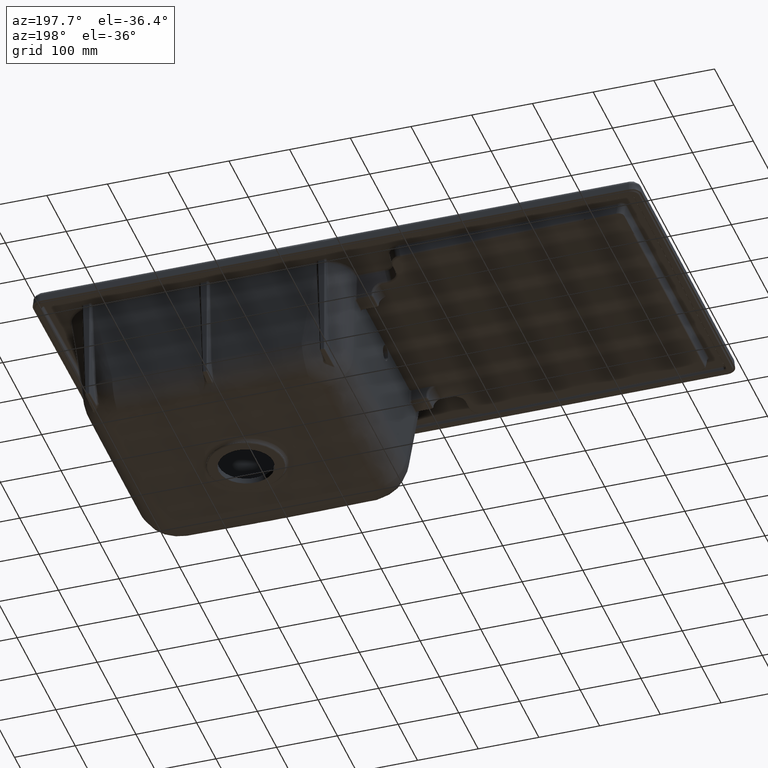
[diagram: clean part render]
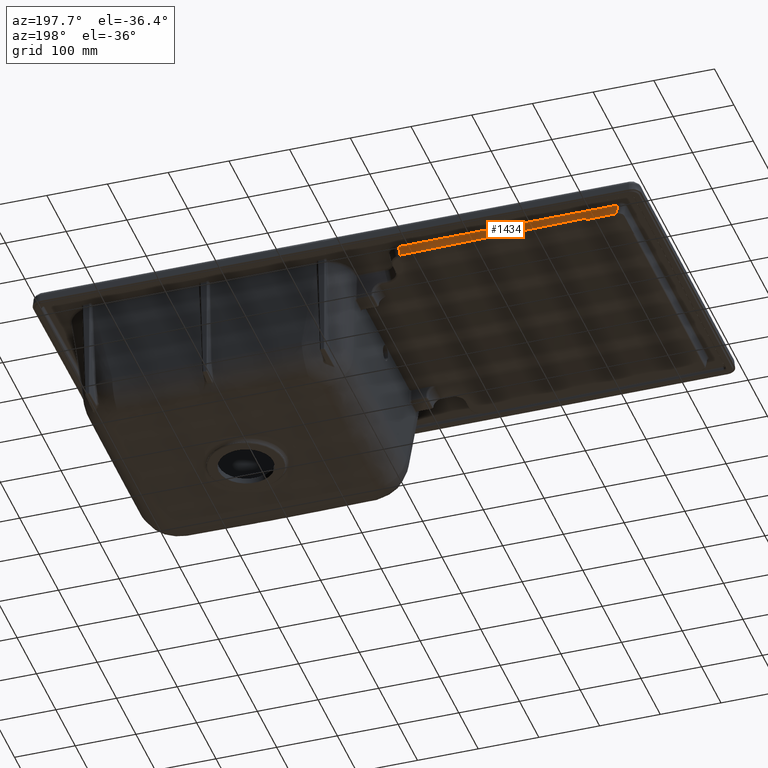
[diagram: same view with one face highlighted and labeled with its STEP entity id]
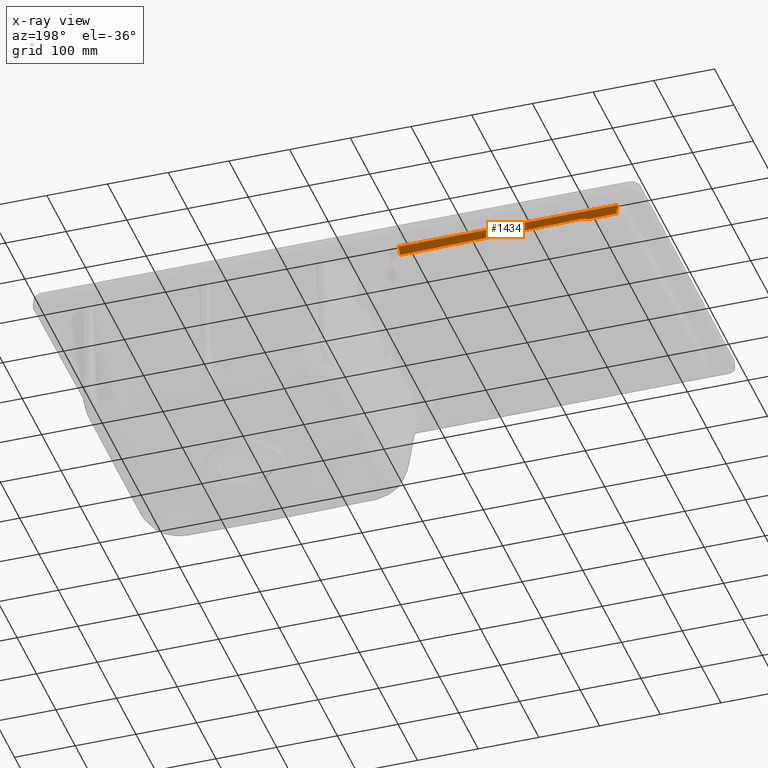
[diagram: x-ray of the same camera — body ghosted, the highlighted face saturated]
A machine part, auxiliary view. The second image highlights one B-rep face of the part: STEP entity #1434.
The next image is the same camera in x-ray: the body ghosted, the highlighted face saturated — about 0% of this face is hidden behind the body in this view.
In plain terms, the highlighted planar face has unit normal (0, 0.9994, -0.0349).
Its self-contained STEP definition (entity closure, byte-faithful):
#408=PLANE('',#7045);
#784=LINE('',#9158,#952);
#785=LINE('',#9162,#953);
#884=LINE('',#24373,#1052);
#897=LINE('',#25059,#1065);
#898=LINE('',#25072,#1066);
#952=VECTOR('',#7210,1.);
#953=VECTOR('',#7215,1.);
#1052=VECTOR('',#7792,1.);
#1065=VECTOR('',#7857,1.);
#1066=VECTOR('',#7860,1.);
#1434=ADVANCED_FACE('',(#1959),#408,.T.);
#1959=FACE_OUTER_BOUND('',#2413,.T.);
#2413=EDGE_LOOP('',(#3957,#3958,#3959,#3960,#3961,#3962,#3963));
#3957=ORIENTED_EDGE('',*,*,#5222,.T.);
#3958=ORIENTED_EDGE('',*,*,#5224,.T.);
#3959=ORIENTED_EDGE('',*,*,#5890,.T.);
#3960=ORIENTED_EDGE('',*,*,#5949,.F.);
#3961=ORIENTED_EDGE('',*,*,#5947,.T.);
#3962=ORIENTED_EDGE('',*,*,#5859,.T.);
#3963=ORIENTED_EDGE('',*,*,#5860,.T.);
#4631=VERTEX_POINT('',#9156);
#4633=VERTEX_POINT('',#9159);
#4634=VERTEX_POINT('',#9163);
#5003=VERTEX_POINT('',#24117);
#5004=VERTEX_POINT('',#24173);
#5021=VERTEX_POINT('',#24374);
#5052=VERTEX_POINT('',#25060);
#5222=EDGE_CURVE('',#4633,#4631,#784,.T.);
#5224=EDGE_CURVE('',#4631,#4634,#785,.T.);
#5859=EDGE_CURVE('',#5003,#5004,#6605,.T.);
#5860=EDGE_CURVE('',#5004,#4633,#6606,.T.);
#5890=EDGE_CURVE('',#4634,#5021,#884,.T.);
#5947=EDGE_CURVE('',#5052,#5003,#897,.T.);
#5949=EDGE_CURVE('',#5052,#5021,#898,.T.);
#6605=B_SPLINE_CURVE_WITH_KNOTS('',3,(#24174,#24175,#24176,#24177,#24178,
#24179,#24180,#24181,#24182,#24183),.UNSPECIFIED.,.F.,.F.,(4,2,2,2,4),(0.,
0.0199364449497629,0.0996822247488144,0.41866534394502,1.),
 .UNSPECIFIED.);
#6606=B_SPLINE_CURVE_WITH_KNOTS('',3,(#24185,#24186,#24187,#24188),
 .UNSPECIFIED.,.F.,.F.,(4,4),(0.,1.),.UNSPECIFIED.);
#7045=AXIS2_PLACEMENT_3D('',#25073,#7861,#7862);
#7210=DIRECTION('',(-0.832580224083278,-0.019330987494545,-0.553567054102685));
#7215=DIRECTION('',(-0.999945102507245,0.000365682734840526,0.0104717834160806));
#7792=DIRECTION('',(-0.173509907089521,0.034370145458374,0.984232190716681));
#7857=DIRECTION('',(-0.173509904875436,-0.0343701454719877,-0.984232191106525));
#7860=DIRECTION('',(-1.,8.04509438134172E-17,3.84895983774538E-34));
#7861=DIRECTION('',(8.04019352721578E-17,0.999390827019096,-0.0348994967024999));
#7862=DIRECTION('',(0.,-0.0348994967024999,-0.999390827019096));
#9156=CARTESIAN_POINT('',(-404.378329657774,218.768273832788,-33.465172450662));
#9158=CARTESIAN_POINT('',(-429.594613215121,218.182797925475,-50.231008823521));
#9159=CARTESIAN_POINT('',(-402.141682254581,218.820204687894,-31.9780673306536));
#9162=CARTESIAN_POINT('',(-121.089579410426,218.664674340496,-36.4318737519275));
#9163=CARTESIAN_POINT('',(-452.669030911899,218.785933877982,-32.9594549234939));
#24117=CARTESIAN_POINT('',(-96.6887007789504,218.756862771724,-33.7919424855178));
#24173=CARTESIAN_POINT('',(-397.628543873435,218.866917318288,-30.6403926151769));
#24174=CARTESIAN_POINT('',(-96.6887007789504,218.756862771724,-33.7919424855177));
#24175=CARTESIAN_POINT('',(-98.6885909839649,218.757594137194,-33.7709989186856));
#24176=CARTESIAN_POINT('',(-100.688481188979,218.758325502664,-33.7500553518534));
#24177=CARTESIAN_POINT('',(-110.687932214052,218.761982330012,-33.6453375176927));
#24178=CARTESIAN_POINT('',(-118.68749303411,218.764907791891,-33.561563250364));
#24179=CARTESIAN_POINT('',(-158.6852971344,218.779535101284,-33.1426919137208));
#24180=CARTESIAN_POINT('',(-190.683540414631,218.791236948799,-32.8075948444063));
#24181=CARTESIAN_POINT('',(-280.997370421054,218.824264970306,-31.8617960551201));
#24182=CARTESIAN_POINT('',(-339.312957147244,218.845591144297,-31.2510943351484));
#24183=CARTESIAN_POINT('',(-397.628543873435,218.866917318288,-30.6403926151769));
#24185=CARTESIAN_POINT('',(-397.628543873435,218.866917318288,-30.6403926151769));
#24186=CARTESIAN_POINT('',(-399.227977743418,218.86750223575,-30.6236427705776));
#24187=CARTESIAN_POINT('',(-400.808705944318,218.851153955771,-31.0917962568081));
#24188=CARTESIAN_POINT('',(-402.141682254581,218.820204687894,-31.9780673306535));
#24373=CARTESIAN_POINT('',(-442.593179749685,216.790033609973,-90.1145605256445));
#24374=CARTESIAN_POINT('',(-455.404014935747,219.327700053199,-17.4453015098925));
#25059=CARTESIAN_POINT('',(-93.7425104767527,219.340466280397,-17.0797245943803));
#25060=CARTESIAN_POINT('',(-93.806957887037,219.327700053199,-17.4453015098925));
#25072=CARTESIAN_POINT('',(-121.058842918,219.327700053199,-17.4453015098925));
#25073=CARTESIAN_POINT('',(-121.058842918,218.767042367874,-33.5004369918464));